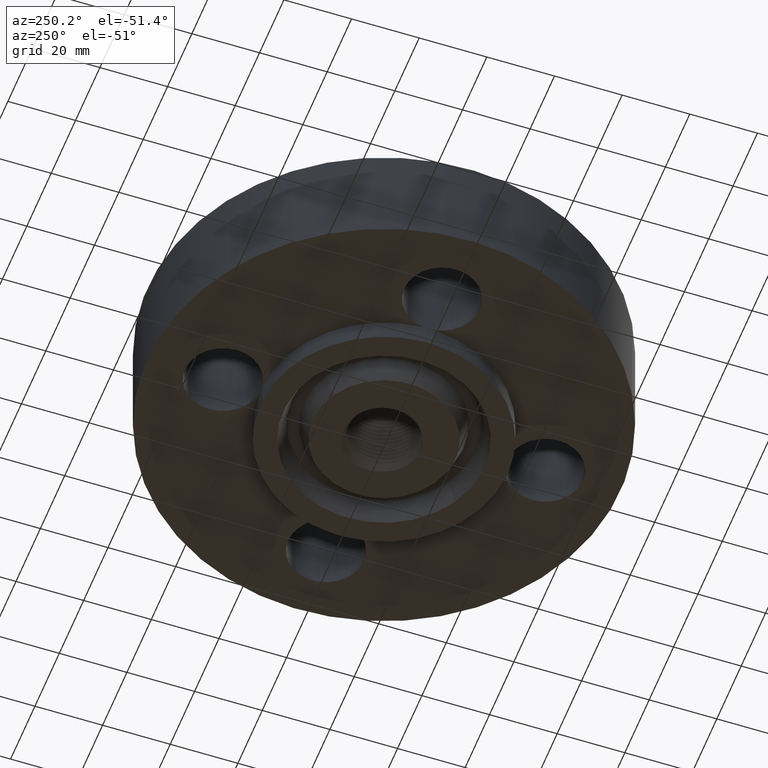
[diagram: clean part render]
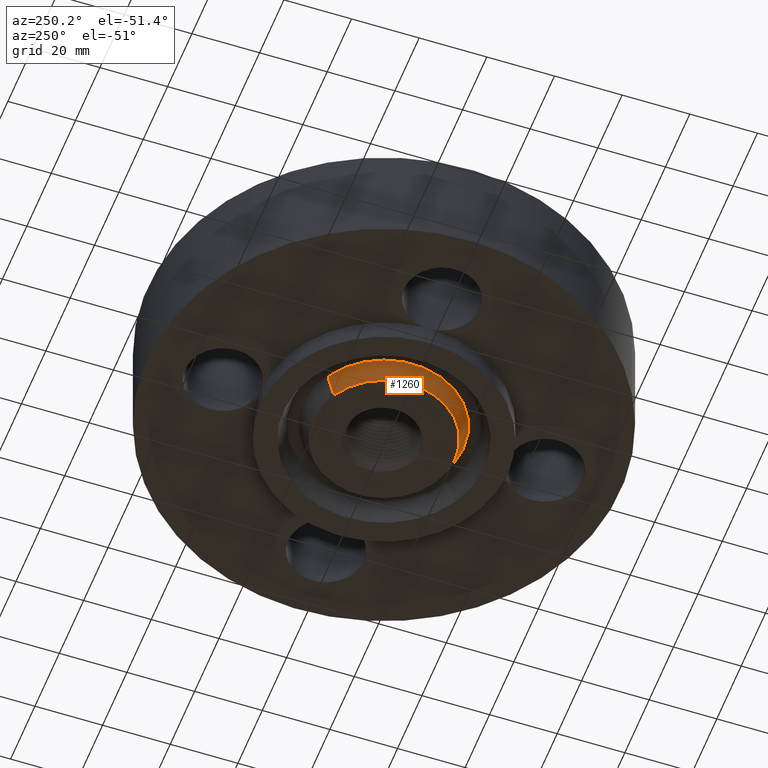
[diagram: same view with one face highlighted and labeled with its STEP entity id]
A machine part, auxiliary view. The second image highlights one B-rep face of the part: STEP entity #1260.
In plain terms, the highlighted conical surface has half-angle 23 deg.
Its self-contained STEP definition (entity closure, byte-faithful):
#181=AXIS2_PLACEMENT_3D('Circle Axis2P3D',#179,#180,$) ;
#1222=AXIS2_PLACEMENT_3D('Circle Axis2P3D',#1220,#1221,$) ;
#1235=AXIS2_PLACEMENT_3D('Cone Axis2P3D',#1232,#1233,#1234) ;
#174=CARTESIAN_POINT('Vertex',(-0.396964345966,0.726638361248,-0.250000000001)) ;
#176=CARTESIAN_POINT('Vertex',(0.396964345966,-0.726638361248,-0.250000000001)) ;
#179=CARTESIAN_POINT('Axis2P3D Location',(2.09805925913E-016,-6.99353086378E-017,-0.250000000001)) ;
#1198=CARTESIAN_POINT('Vertex',(0.443996713314,-0.812730532203,-0.0188873350169)) ;
#1205=CARTESIAN_POINT('Vertex',(-0.443996713314,0.812730532203,-0.0188873350169)) ;
#1220=CARTESIAN_POINT('Axis2P3D Location',(0.,0.,-0.0188873350169)) ;
#1232=CARTESIAN_POINT('Axis2P3D Location',(0.,0.,-0.310000000001)) ;
#1237=CARTESIAN_POINT('Line Origine',(-0.42048052964,0.769684446725,-0.134443667509)) ;
#1242=CARTESIAN_POINT('Line Origine',(0.42048052964,-0.769684446725,-0.134443667509)) ;
#180=DIRECTION('Axis2P3D Direction',(0.,0.,-0.0393700787402)) ;
#1221=DIRECTION('Axis2P3D Direction',(0.,0.,0.0393700787402)) ;
#1233=DIRECTION('Axis2P3D Direction',(0.,0.,0.0393700787402)) ;
#1234=DIRECTION('Axis2P3D XDirection',(-0.0188750212049,0.0345504945626,0.)) ;
#1238=DIRECTION('Vector Direction',(-0.00737505833565,0.0134999537303,0.0362403485611)) ;
#1243=DIRECTION('Vector Direction',(0.00737505833565,-0.0134999537303,0.0362403485611)) ;
#1239=VECTOR('Line Direction',#1238,0.0393700787402) ;
#1244=VECTOR('Line Direction',#1243,0.0393700787402) ;
#1255=ORIENTED_EDGE('',*,*,#1246,.F.) ;
#1256=ORIENTED_EDGE('',*,*,#1224,.F.) ;
#1257=ORIENTED_EDGE('',*,*,#1241,.T.) ;
#1258=ORIENTED_EDGE('',*,*,#183,.F.) ;
#1260=ADVANCED_FACE('PartBody',(#1259),#1236,.T.) ;
#182=CIRCLE('generated circle',#181,0.828000000003) ;
#1223=CIRCLE('generated circle',#1222,0.926101505996) ;
#1236=CONICAL_SURFACE('Cone',#1235,0.802531511031,0.401425727959) ;
#183=EDGE_CURVE('',#177,#175,#182,.T.) ;
#1224=EDGE_CURVE('',#1206,#1199,#1223,.T.) ;
#1241=EDGE_CURVE('',#1206,#175,#1240,.F.) ;
#1246=EDGE_CURVE('',#1199,#177,#1245,.F.) ;
#1254=EDGE_LOOP('',(#1255,#1256,#1257,#1258)) ;
#1259=FACE_OUTER_BOUND('',#1254,.T.) ;
#1240=LINE('Line',#1237,#1239) ;
#1245=LINE('Line',#1242,#1244) ;
#175=VERTEX_POINT('',#174) ;
#177=VERTEX_POINT('',#176) ;
#1199=VERTEX_POINT('',#1198) ;
#1206=VERTEX_POINT('',#1205) ;